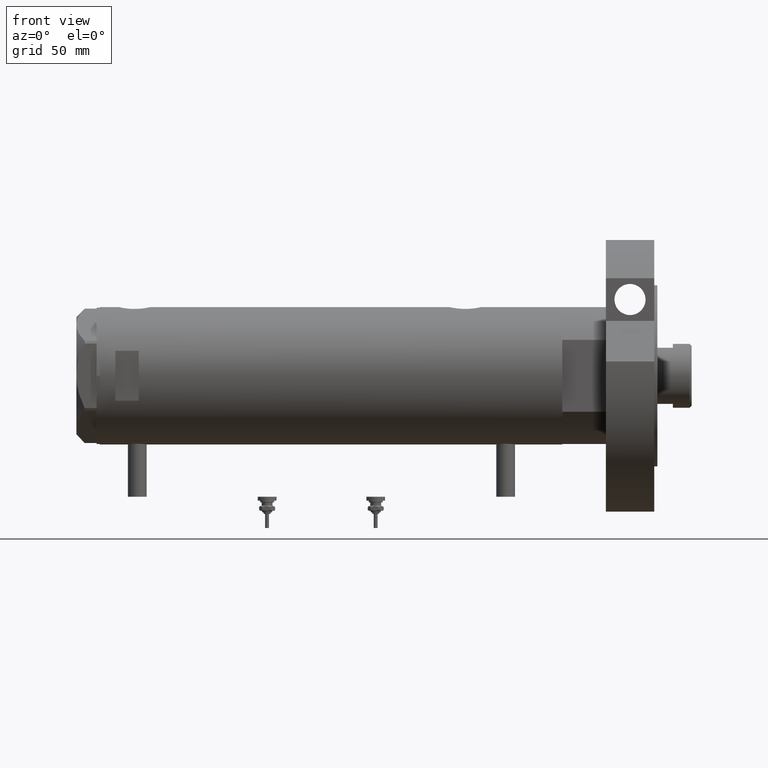
[diagram: clean part render]
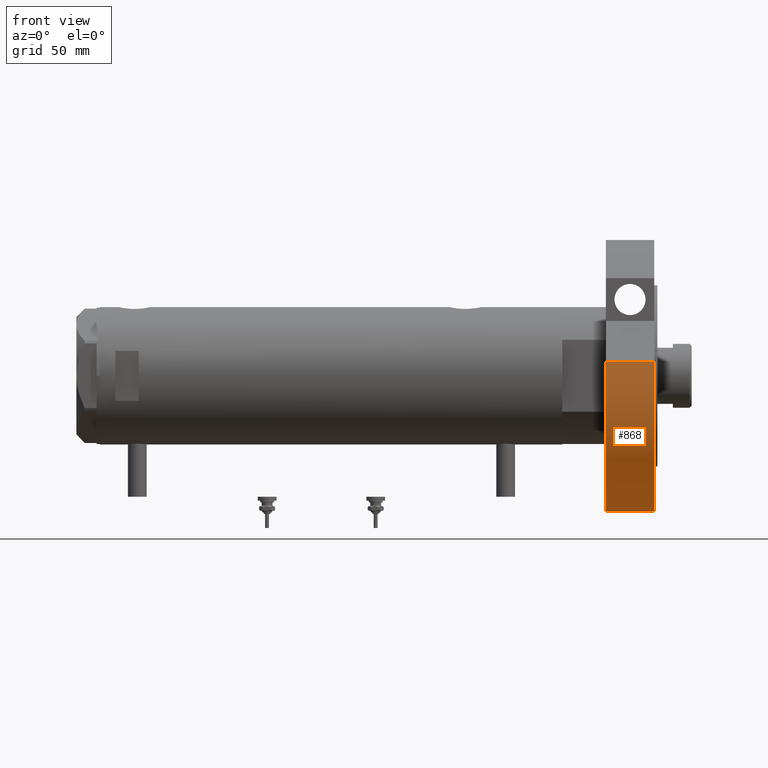
[diagram: same view with one face highlighted and labeled with its STEP entity id]
A machine part, front view. The second image highlights one B-rep face of the part: STEP entity #868.
In plain terms, the highlighted cylindrical surface (partial cylindrical patch) has radius 87 mm, axis along (-1, -0, 0).
Its self-contained STEP definition (entity closure, byte-faithful):
#84 = LINE ( 'NONE', #570, #3822 ) ;
#288 = CIRCLE ( 'NONE', #1393, 87.00000000000000000 ) ;
#426 = DIRECTION ( 'NONE',  ( -1.000000000000000000, 0.000000000000000000, 0.000000000000000000 ) ) ;
#570 = CARTESIAN_POINT ( 'NONE',  ( 9.196694222441541555, 86.51254715576759224, 0.000000000000000000 ) ) ;
#838 = VERTEX_POINT ( 'NONE', #4045 ) ;
#840 = DIRECTION ( 'NONE',  ( -0.000000000000000000, -0.000000000000000000, -1.000000000000000000 ) ) ;
#868 = ADVANCED_FACE ( 'NONE', ( #6841 ), #5188, .T. ) ;
#897 = CIRCLE ( 'NONE', #7358, 87.00000000000000000 ) ;
#1050 = EDGE_CURVE ( 'NONE', #7044, #838, #3050, .T. ) ;
#1264 = CARTESIAN_POINT ( 'NONE',  ( 0.000000000000000000, 0.000000000000000000, 0.000000000000000000 ) ) ;
#1393 = AXIS2_PLACEMENT_3D ( 'NONE', #1264, #5186, #1680 ) ;
#1589 = VECTOR ( 'NONE', #840, 1000.000000000000000 ) ;
#1680 = DIRECTION ( 'NONE',  ( 1.000000000000000000, 0.000000000000000000, 0.000000000000000000 ) ) ;
#1810 = ORIENTED_EDGE ( 'NONE', *, *, #3696, .F. ) ;
#1820 = VERTEX_POINT ( 'NONE', #7339 ) ;
#2355 = ORIENTED_EDGE ( 'NONE', *, *, #4397, .T. ) ;
#2361 = DIRECTION ( 'NONE',  ( -0.000000000000000000, -0.000000000000000000, 1.000000000000000000 ) ) ;
#2367 = ORIENTED_EDGE ( 'NONE', *, *, #4408, .F. ) ;
#2506 = CARTESIAN_POINT ( 'NONE',  ( 0.000000000000000000, 0.000000000000000000, 31.00000000000000000 ) ) ;
#3050 = LINE ( 'NONE', #5383, #1589 ) ;
#3696 = EDGE_CURVE ( 'NONE', #5061, #7044, #897, .T. ) ;
#3822 = VECTOR ( 'NONE', #2361, 1000.000000000000000 ) ;
#4045 = CARTESIAN_POINT ( 'NONE',  ( -87.00000000000000000, 0.000000000000000000, 0.000000000000000000 ) ) ;
#4397 = EDGE_CURVE ( 'NONE', #1820, #838, #288, .T. ) ;
#4408 = EDGE_CURVE ( 'NONE', #1820, #5061, #84, .T. ) ;
#4527 = EDGE_LOOP ( 'NONE', ( #4714, #1810, #2367, #2355 ) ) ;
#4544 = DIRECTION ( 'NONE',  ( -0.000000000000000000, -0.000000000000000000, -1.000000000000000000 ) ) ;
#4714 = ORIENTED_EDGE ( 'NONE', *, *, #1050, .F. ) ;
#5061 = VERTEX_POINT ( 'NONE', #7511 ) ;
#5186 = DIRECTION ( 'NONE',  ( 0.000000000000000000, 0.000000000000000000, 1.000000000000000000 ) ) ;
#5188 = CYLINDRICAL_SURFACE ( 'NONE', #5609, 87.00000000000000000 ) ;
#5224 = CARTESIAN_POINT ( 'NONE',  ( 0.000000000000000000, 0.000000000000000000, 31.00000000000000000 ) ) ;
#5362 = DIRECTION ( 'NONE',  ( 0.000000000000000000, 0.000000000000000000, 1.000000000000000000 ) ) ;
#5383 = CARTESIAN_POINT ( 'NONE',  ( -87.00000000000000000, 0.000000000000000000, 31.00000000000000000 ) ) ;
#5609 = AXIS2_PLACEMENT_3D ( 'NONE', #5224, #4544, #426 ) ;
#6554 = DIRECTION ( 'NONE',  ( 1.000000000000000000, 0.000000000000000000, 0.000000000000000000 ) ) ;
#6841 = FACE_OUTER_BOUND ( 'NONE', #4527, .T. ) ;
#7044 = VERTEX_POINT ( 'NONE', #7179 ) ;
#7179 = CARTESIAN_POINT ( 'NONE',  ( -87.00000000000000000, 0.000000000000000000, 31.00000000000000000 ) ) ;
#7339 = CARTESIAN_POINT ( 'NONE',  ( 9.196694222441541555, 86.51254715576759224, 0.000000000000000000 ) ) ;
#7358 = AXIS2_PLACEMENT_3D ( 'NONE', #2506, #5362, #6554 ) ;
#7511 = CARTESIAN_POINT ( 'NONE',  ( 9.196694222441541555, 86.51254715576759224, 31.00000000000000000 ) ) ;